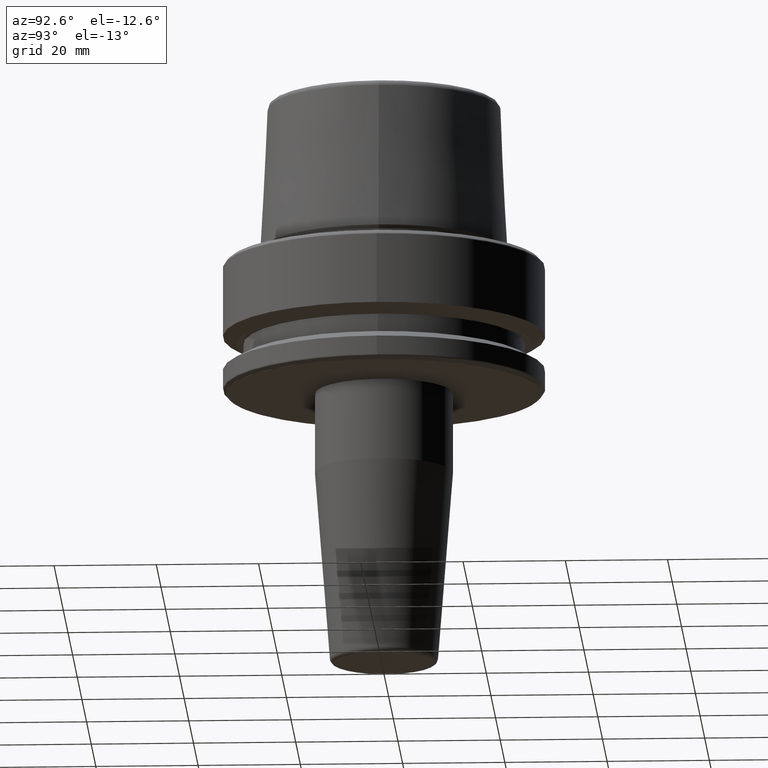
[diagram: clean part render]
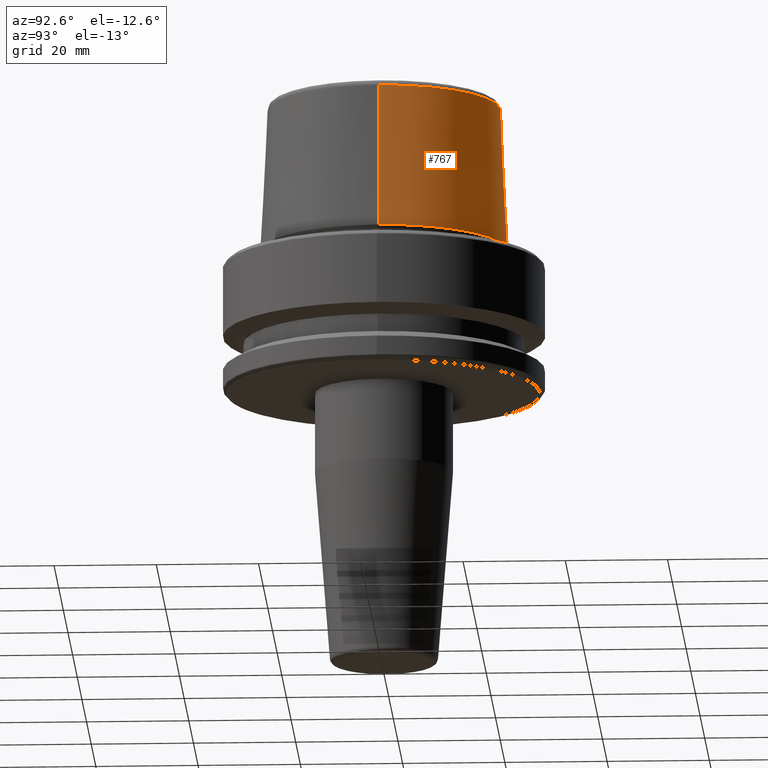
[diagram: same view with one face highlighted and labeled with its STEP entity id]
A machine part, auxiliary view. The second image highlights one B-rep face of the part: STEP entity #767.
In plain terms, the highlighted conical surface has half-angle 2.868 deg.
Its self-contained STEP definition (entity closure, byte-faithful):
#13 = EDGE_CURVE ( 'NONE', #651, #1126, #151, .T. ) ;
#23 = DIRECTION ( 'NONE',  ( 1.000000000000000000, 0.0000000000000000000, 0.0000000000000000000 ) ) ;
#110 = LINE ( 'NONE', #547, #365 ) ;
#120 = CONICAL_SURFACE ( 'NONE', #962, 24.19537568275369200, 0.05005701257455997400 ) ;
#149 = DIRECTION ( 'NONE',  ( -1.000000000000000000, 0.0000000000000000000, 0.0000000000000000000 ) ) ;
#151 = LINE ( 'NONE', #399, #1163 ) ;
#153 = CARTESIAN_POINT ( 'NONE',  ( 24.19537568275369200, 0.0000000000000000000, 2.500000000000002200 ) ) ;
#207 = CARTESIAN_POINT ( 'NONE',  ( 22.77957961851797100, 2.876386432489616700E-015, 30.76004333261571900 ) ) ;
#240 = EDGE_LOOP ( 'NONE', ( #455, #1200, #1107, #1056 ) ) ;
#244 = CARTESIAN_POINT ( 'NONE',  ( 0.0000000000000000000, 0.0000000000000000000, 2.500000000000002200 ) ) ;
#277 = EDGE_CURVE ( 'NONE', #1021, #1258, #110, .T. ) ;
#301 = CIRCLE ( 'NONE', #550, 24.19537568275369200 ) ;
#325 = CARTESIAN_POINT ( 'NONE',  ( -22.77957961851797100, 0.0000000000000000000, 30.76004333261571900 ) ) ;
#351 = DIRECTION ( 'NONE',  ( 0.0000000000000000000, 0.0000000000000000000, -1.000000000000000000 ) ) ;
#365 = VECTOR ( 'NONE', #439, 1000.000000000000200 ) ;
#369 = CIRCLE ( 'NONE', #1194, 22.77957961851797100 ) ;
#399 = CARTESIAN_POINT ( 'NONE',  ( -24.19537568275369200, 0.0000000000000000000, 2.500000000000002200 ) ) ;
#407 = CARTESIAN_POINT ( 'NONE',  ( 0.0000000000000000000, 0.0000000000000000000, 2.500000000000002200 ) ) ;
#439 = DIRECTION ( 'NONE',  ( 0.05003611051310804400, 6.127656258166099700E-018, -0.9987474093306675200 ) ) ;
#455 = ORIENTED_EDGE ( 'NONE', *, *, #542, .F. ) ;
#511 = DIRECTION ( 'NONE',  ( 1.000000000000000000, 0.0000000000000000000, 0.0000000000000000000 ) ) ;
#542 = EDGE_CURVE ( 'NONE', #1021, #651, #369, .T. ) ;
#547 = CARTESIAN_POINT ( 'NONE',  ( 24.19537568275369200, 2.963078938405201500E-015, 2.500000000000002200 ) ) ;
#550 = AXIS2_PLACEMENT_3D ( 'NONE', #407, #1093, #511 ) ;
#573 = EDGE_CURVE ( 'NONE', #1258, #1126, #301, .T. ) ;
#612 = DIRECTION ( 'NONE',  ( -0.0000000000000000000, -0.0000000000000000000, 1.000000000000000000 ) ) ;
#651 = VERTEX_POINT ( 'NONE', #325 ) ;
#767 = ADVANCED_FACE ( 'NONE', ( #1188 ), #120, .T. ) ;
#907 = DIRECTION ( 'NONE',  ( -0.05003611051310804400, 0.0000000000000000000, -0.9987474093306675200 ) ) ;
#962 = AXIS2_PLACEMENT_3D ( 'NONE', #244, #351, #149 ) ;
#1011 = CARTESIAN_POINT ( 'NONE',  ( -24.19537568275369200, 2.963078938405201500E-015, 2.500000000000002200 ) ) ;
#1021 = VERTEX_POINT ( 'NONE', #207 ) ;
#1056 = ORIENTED_EDGE ( 'NONE', *, *, #13, .F. ) ;
#1093 = DIRECTION ( 'NONE',  ( -0.0000000000000000000, -0.0000000000000000000, 1.000000000000000000 ) ) ;
#1107 = ORIENTED_EDGE ( 'NONE', *, *, #573, .T. ) ;
#1126 = VERTEX_POINT ( 'NONE', #1011 ) ;
#1163 = VECTOR ( 'NONE', #907, 1000.000000000000200 ) ;
#1187 = CARTESIAN_POINT ( 'NONE',  ( 0.0000000000000000000, 0.0000000000000000000, 30.76004333261571900 ) ) ;
#1188 = FACE_OUTER_BOUND ( 'NONE', #240, .T. ) ;
#1194 = AXIS2_PLACEMENT_3D ( 'NONE', #1187, #612, #23 ) ;
#1200 = ORIENTED_EDGE ( 'NONE', *, *, #277, .T. ) ;
#1258 = VERTEX_POINT ( 'NONE', #153 ) ;